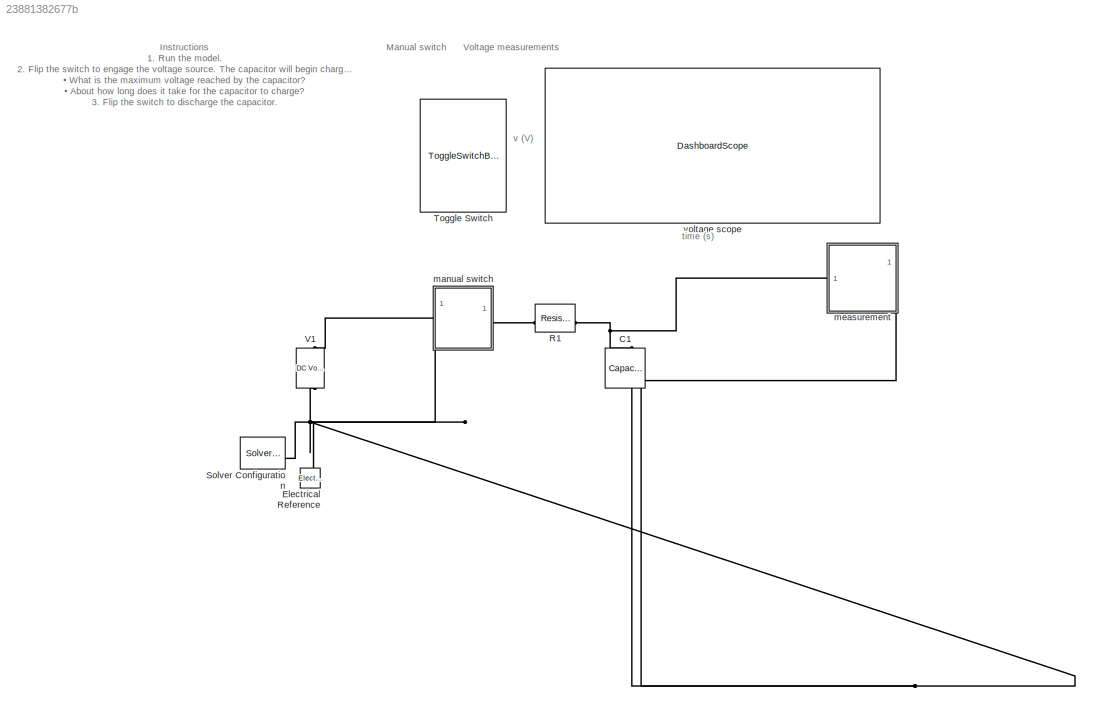
MODEL slx_23881382677b
KIND model
CONFIG AbsTol = auto
CONFIG EnableMultiTasking = off
CONFIG FixedStep = auto
CONFIG MaxStep = 1e-5
CONFIG MinStep = auto
CONFIG RelTol = 1e-3
CONFIG SampleTimeConstraint = Unconstrained
CONFIG SolverName = VariableStepAuto
CONFIG StartTime = 0.0
CONFIG StopTime = inf
BLOCK [Reference] C1  REF=fl_lib/Electrical/Electrical Elements/Capacitor
  AttributesFormatString = %<c> %<c_unit>
  NameLocation = right
  SourceBlock = fl_lib/Electrical/Electrical Elements/Capacitor
  SourceType = Capacitor
BLOCK [Reference] Electrical Reference  REF=fl_lib/Electrical/Electrical Elements/Electrical Reference
  NameLocation = right
  SourceBlock = fl_lib/Electrical/Electrical Elements/Electrical Reference
  SourceType = Electrical Reference
BLOCK [Reference] R1  REF=fl_lib/Electrical/Electrical Elements/Resistor
  AttributesFormatString = %<R> %<R_unit>
  SourceBlock = fl_lib/Electrical/Electrical Elements/Resistor
  SourceType = Resistor
BLOCK [Reference] Solver Configuration  REF=nesl_utility/Solver
Configuration
  SourceBlock = nesl_utility/Solver\nConfiguration
  SourceType = Solver\nConfiguration
BLOCK [ToggleSwitchBlock] Toggle Switch
  LabelPosition = Hide
  NameLocation = left
BLOCK [Reference] V1  REF=fl_lib/Electrical/Electrical Sources/DC Voltage Source
  AttributesFormatString = %<v0> %<v0_unit>
  NameLocation = right
  SourceBlock = fl_lib/Electrical/Electrical Sources/DC Voltage Source
  SourceType = DC Voltage Source
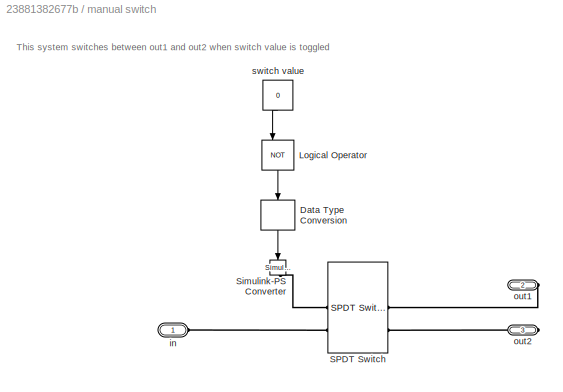
BLOCK [SubSystem] manual switch
  NameLocation = top
  PortSchema = {"entries":[{"content":{"sides":[{"content":{"connectorIds":["LConn1"]},"type":"ConnectorPlacement.EquallySpacedRectSide","uuid":"0e8d165f-9423-448d-a092-8a5aaec0f3f9"},{"content":{"connectorIds":["RConn1"],"side":"RIGHT"},"type":"ConnectorPlacement.EquallySpacedRectSide","uuid":"3a6701ab-7127-4025-a8cd-0b0ce6beee28"},{"content":{"connectorIds":[],"side":"TOP"},"type":"ConnectorPlacement.EquallySp...<+397ch>
BLOCK [DataTypeConversion] manual switch/Data Type Conversion
  NameLocation = left
  OutDataTypeStr = double
  RndMeth = Floor
  SaturateOnIntegerOverflow = off
BLOCK [Logic] manual switch/Logical Operator
  AllPortsSameDT = off
  NameLocation = left
  Operator = NOT
  OutDataTypeStr = boolean
BLOCK [Reference] manual switch/SPDT Switch  REF=ee_lib/Switches & Breakers/SPDT Switch
  SourceBlock = ee_lib/Switches & Breakers/SPDT Switch
  SourceType = SPDT Switch
BLOCK [Reference] manual switch/Simulink-PS Converter  REF=nesl_utility/Simulink-PS
Converter
  NameLocation = left
  SourceBlock = nesl_utility/Simulink-PS\nConverter
  SourceType = Simulink-PS\nConverter
BLOCK [PMIOPort] manual switch/in
  NameLocation = top
  Side = Left
BLOCK [PMIOPort] manual switch/out1
  Port = 2
  Side = Right
BLOCK [PMIOPort] manual switch/out2
  Port = 3
  Side = Right
BLOCK [Constant] manual switch/switch value
  NameLocation = left
  Value = 0
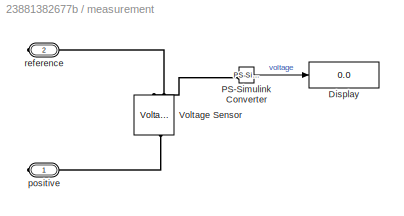
BLOCK [SubSystem] measurement
  NameLocation = top
  PortSchema = {"entries":[{"content":{"sides":[{"content":{"connectorIds":[]},"type":"ConnectorPlacement.EquallySpacedRectSide","uuid":"e6ae0c61-2eb5-460e-b2a2-38a9147b4757"},{"content":{"connectorIds":[],"side":"RIGHT"},"type":"ConnectorPlacement.EquallySpacedRectSide","uuid":"ce3a3055-ccd0-4b2b-b818-955585f278b2"},{"content":{"connectorIds":[],"side":"TOP"},"type":"ConnectorPlacement.EquallySpacedRectSide","u...<+390ch>
BLOCK [Display] measurement/Display
  Decimation = 1
BLOCK [Reference] measurement/PS-Simulink Converter  REF=nesl_utility/PS-Simulink
Converter
  SourceBlock = nesl_utility/PS-Simulink\nConverter
  SourceType = PS-Simulink\nConverter
BLOCK [Reference] measurement/Voltage Sensor  REF=fl_lib/Electrical/Electrical Sensors/Voltage Sensor
  NameLocation = left
  SourceBlock = fl_lib/Electrical/Electrical Sensors/Voltage Sensor
  SourceType = Voltage Sensor
BLOCK [PMIOPort] measurement/positive
  Side = Right
BLOCK [PMIOPort] measurement/reference
  Port = 2
  Side = Right
BLOCK [DashboardScope] voltage scope
  NameLocation = top
  ScaleAtStop = off
  ShowInitialText = off
  TimeSpan = 0.001
  Ymax = 13
  Ymin = -1
ANNOTATION (root): Instructions 1. Run the model. 2. Flip the switch to engage the voltage source. The capacitor will begin charging. • What is the maximum voltage reached by the capacitor? • About how long does it take for the capacitor to charge? 3. Flip the switch to discharge the capacitor. • About how long does it take for the capacitor to discharge?
ANNOTATION (root): v (V)
ANNOTATION (root): time (s)
ANNOTATION (root): Manual switch
ANNOTATION (root): Voltage measurements
ANNOTATION manual switch: This system switches between out1 and out2 when switch value is toggled
LINE manual switch/Data Type Conversion:1 -> manual switch/Simulink-PS Converter:1
LINE manual switch/Logical Operator:1 -> manual switch/Data Type Conversion:1
LINE manual switch/switch value:1 -> manual switch/Logical Operator:1
LINE measurement/PS-Simulink Converter:1 -> measurement/Display:1
PNET net1: C1:LConn1 -- R1:RConn1 -- measurement:RConn1
PNET net2: C1:RConn1 -- Electrical Reference:LConn1 -- Solver Configuration:RConn1 -- V1:RConn1 -- manual switch:RConn2 -- measurement:RConn2
PLINE R1:LConn1 -- manual switch:LConn1
PLINE V1:LConn1 -- manual switch:RConn1
PLINE manual switch/SPDT Switch:LConn1 -- manual switch/Simulink-PS Converter:RConn1
PLINE manual switch/SPDT Switch:LConn2 -- manual switch/in:RConn1
PLINE manual switch/SPDT Switch:RConn1 -- manual switch/out1:RConn1
PLINE manual switch/SPDT Switch:RConn2 -- manual switch/out2:RConn1
PLINE measurement/PS-Simulink Converter:LConn1 -- measurement/Voltage Sensor:RConn1
PLINE measurement/Voltage Sensor:LConn1 -- measurement/positive:RConn1
PLINE measurement/Voltage Sensor:RConn2 -- measurement/reference:RConn1
note: PNET lines group multi-terminal physical nets as a canonical sorted terminal list (undirected conserving connections); 2-terminal nets keep the pairwise PLINE form
